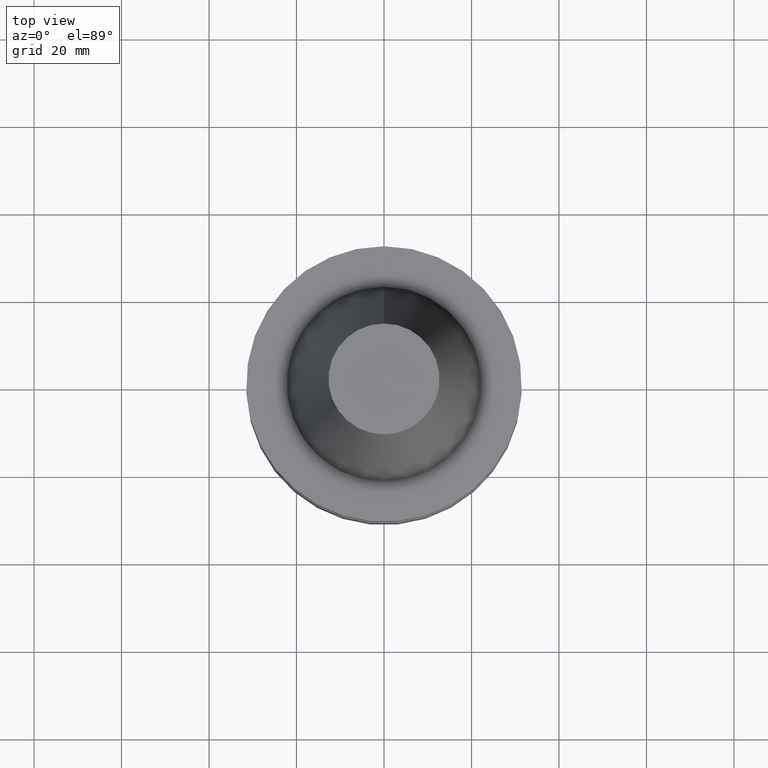
[diagram: clean part render]
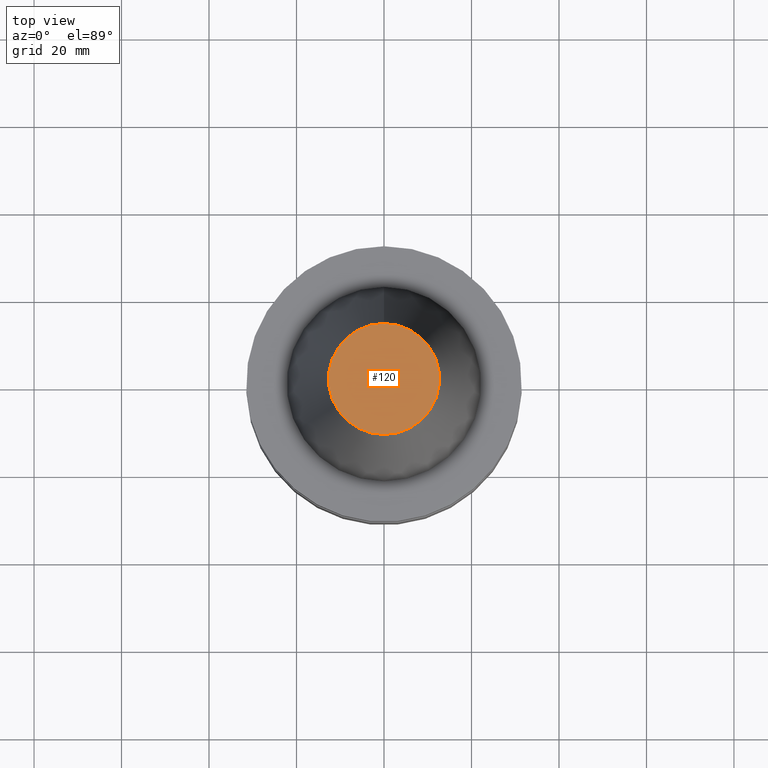
[diagram: same view with one face highlighted and labeled with its STEP entity id]
A machine part, top view. The second image highlights one B-rep face of the part: STEP entity #120.
In plain terms, the highlighted planar face has unit normal (-0, 0, 1).
Its self-contained STEP definition (entity closure, byte-faithful):
#110=EDGE_CURVE('Unnamed[1]',#233,#233,#234,.T.);
#120=ADVANCED_FACE('Unnamed[1]',(#248),#249,.T.);
#233=VERTEX_POINT('',#379);
#234=CIRCLE('',#380,12.6875000000001);
#248=FACE_OUTER_BOUND('',#398,.T.);
#249=PLANE('',#399);
#379=CARTESIAN_POINT('',(-4.00459503321185E-015,12.6875000000002,65.4000000000001));
#380=AXIS2_PLACEMENT_3D('',#513,#514,#515);
#398=EDGE_LOOP('',(#529));
#399=AXIS2_PLACEMENT_3D('',#530,#531,#532);
#513=CARTESIAN_POINT('',(-4.00459503321185E-015,7.65054103780397E-014,65.4000000000001));
#514=DIRECTION('',(6.12323399573677E-017,-6.62934875621744E-016,-1.0));
#515=DIRECTION('',(3.57659009428965E-032,1.0,-6.62934875621744E-016));
#529=ORIENTED_EDGE('',*,*,#110,.F.);
#530=CARTESIAN_POINT('',(-4.00459503321185E-015,6.34375000000014,65.4000000000001));
#531=DIRECTION('',(-6.12323399573677E-017,9.97602686800683E-016,1.0));
#532=DIRECTION('',(-5.62583941297938E-032,-1.0,9.97602686800683E-016));